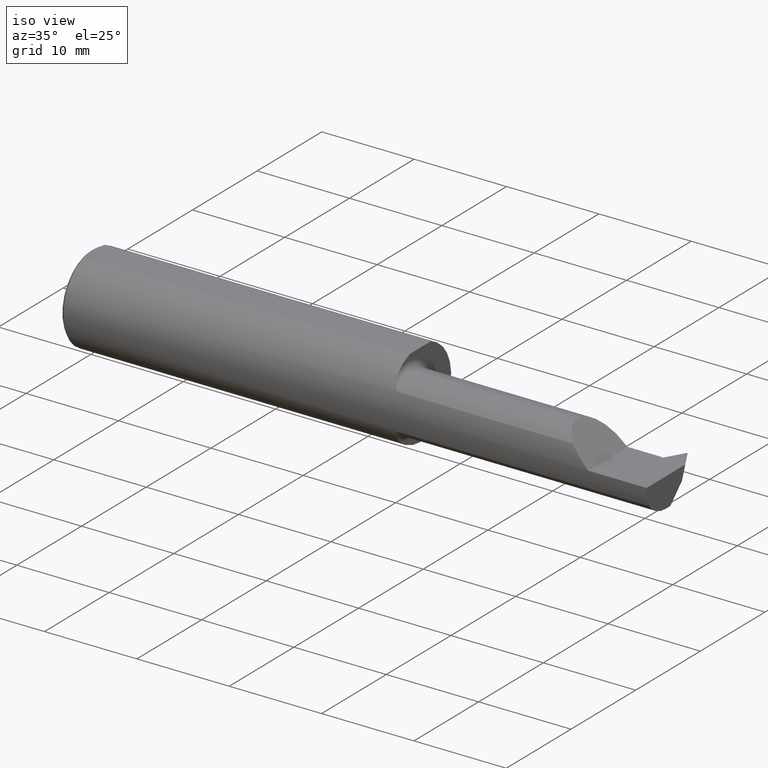
[diagram: clean part render]
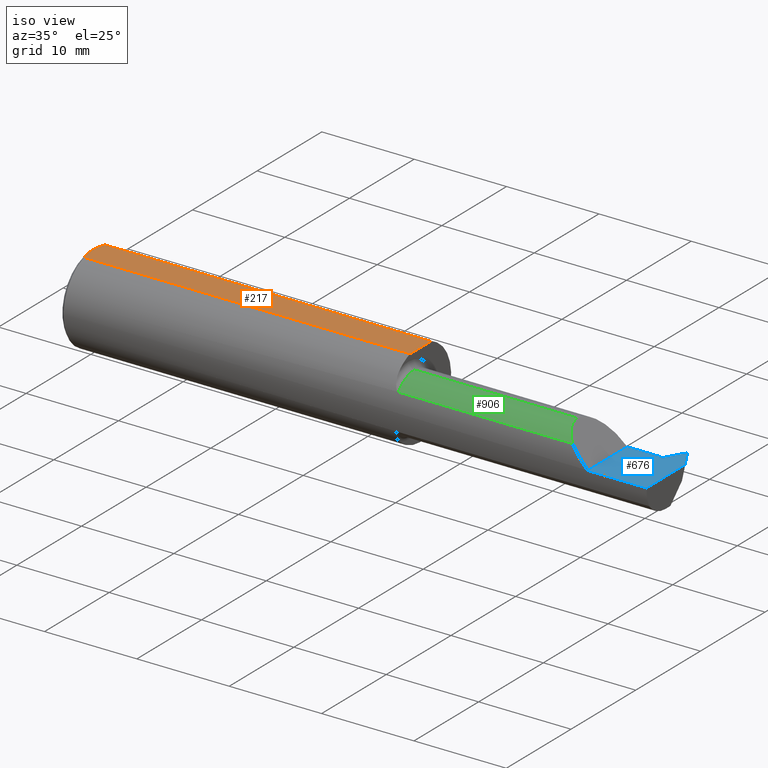
[diagram: same view with three faces highlighted in distinct colors, each labeled with its STEP entity id]
A machine part, iso view with three faces highlighted in distinct colors.
Their STEP definitions:

[orange] entity #217 — the highlighted planar face has unit normal (-0, 0, -1).
#15 = B_SPLINE_CURVE_WITH_KNOTS ( 'NONE', 3,
 ( #968, #867, #506, #125, #60, #277 ),
 .UNSPECIFIED., .F., .F.,
 ( 4, 2, 4 ),
 ( 0.004260876108247118113, 0.005070351723613903024, 0.005879827338980687934 ),
 .UNSPECIFIED. ) ;
#25 = ORIENTED_EDGE ( 'NONE', *, *, #627, .F. ) ;
#27 = PLANE ( 'NONE',  #288 ) ;
#51 = CARTESIAN_POINT ( 'NONE',  ( 1.405000000000000249, 0.06325108694718213631, 0.1763499999999999790 ) ) ;
#60 = CARTESIAN_POINT ( 'NONE',  ( 0.004000000000000399070, 0.01076648422130179264, 0.1763500000000000068 ) ) ;
#90 = EDGE_CURVE ( 'NONE', #502, #226, #842, .T. ) ;
#107 = CARTESIAN_POINT ( 'NONE',  ( 0.01500000000000079568, 0.06325108694718213631, 0.1763499999999999790 ) ) ;
#108 = VERTEX_POINT ( 'NONE', #914 ) ;
#125 = CARTESIAN_POINT ( 'NONE',  ( 0.005015674426658929021, 0.02160712711892616780, 0.1763499999999999790 ) ) ;
#156 = ORIENTED_EDGE ( 'NONE', *, *, #90, .F. ) ;
#170 = CARTESIAN_POINT ( 'NONE',  ( 0.008774081248144433368, -0.04260406931483737974, 0.1763499999999999790 ) ) ;
#217 = ADVANCED_FACE ( 'NONE', ( #707 ), #27, .F. ) ;
#226 = VERTEX_POINT ( 'NONE', #720 ) ;
#233 = VECTOR ( 'NONE', #961, 39.37007874015748143 ) ;
#244 = CARTESIAN_POINT ( 'NONE',  ( 0.01500000000000079048, -0.06325108694718213631, 0.1763499999999999790 ) ) ;
#252 = B_SPLINE_CURVE_WITH_KNOTS ( 'NONE', 3,
 ( #633, #850, #710, #170, #857, #244 ),
 .UNSPECIFIED., .F., .F.,
 ( 4, 2, 4 ),
 ( 0.005879827338980687934, 0.006688927827499994636, 0.007498028316019300470 ),
 .UNSPECIFIED. ) ;
#272 = LINE ( 'NONE', #648, #233 ) ;
#277 = CARTESIAN_POINT ( 'NONE',  ( 0.003999999999998503017, 1.478949923165211460E-16, 0.1763499999999999790 ) ) ;
#288 = AXIS2_PLACEMENT_3D ( 'NONE', #783, #339, #478 ) ;
#339 = DIRECTION ( 'NONE',  ( -0.000000000000000000, 0.000000000000000000, -1.000000000000000000 ) ) ;
#355 = LINE ( 'NONE', #573, #950 ) ;
#362 = ORIENTED_EDGE ( 'NONE', *, *, #549, .F. ) ;
#478 = DIRECTION ( 'NONE',  ( -1.000000000000000000, 0.000000000000000000, 0.000000000000000000 ) ) ;
#486 = VECTOR ( 'NONE', #910, 39.37007874015748143 ) ;
#502 = VERTEX_POINT ( 'NONE', #690 ) ;
#505 = EDGE_CURVE ( 'NONE', #108, #226, #252, .T. ) ;
#506 = CARTESIAN_POINT ( 'NONE',  ( 0.008798171893809259708, 0.04269596770163366223, 0.1763499999999999790 ) ) ;
#512 = ORIENTED_EDGE ( 'NONE', *, *, #905, .T. ) ;
#538 = ORIENTED_EDGE ( 'NONE', *, *, #505, .T. ) ;
#549 = EDGE_CURVE ( 'NONE', #605, #502, #355, .T. ) ;
#573 = CARTESIAN_POINT ( 'NONE',  ( 1.405000000000000249, 0.1749999999999999889, 0.1763499999999999790 ) ) ;
#605 = VERTEX_POINT ( 'NONE', #51 ) ;
#622 = CARTESIAN_POINT ( 'NONE',  ( 2.500000000000000000, -0.06325108694718213631, 0.1763499999999999790 ) ) ;
#627 = EDGE_CURVE ( 'NONE', #770, #605, #272, .T. ) ;
#633 = CARTESIAN_POINT ( 'NONE',  ( 0.003999999999998503017, 1.478949923165211460E-16, 0.1763499999999999790 ) ) ;
#648 = CARTESIAN_POINT ( 'NONE',  ( 2.500000000000000000, 0.06325108694718213631, 0.1763499999999999790 ) ) ;
#690 = CARTESIAN_POINT ( 'NONE',  ( 1.405000000000000249, -0.06325108694718215019, 0.1763499999999999790 ) ) ;
#707 = FACE_OUTER_BOUND ( 'NONE', #933, .T. ) ;
#710 = CARTESIAN_POINT ( 'NONE',  ( 0.004991821518933527678, -0.02143118227845419027, 0.1763500000000000068 ) ) ;
#720 = CARTESIAN_POINT ( 'NONE',  ( 0.01500000000000079048, -0.06325108694718213631, 0.1763499999999999790 ) ) ;
#770 = VERTEX_POINT ( 'NONE', #107 ) ;
#783 = CARTESIAN_POINT ( 'NONE',  ( 0.000000000000000000, 0.1749999999999999889, 0.1763499999999999790 ) ) ;
#842 = LINE ( 'NONE', #622, #486 ) ;
#850 = CARTESIAN_POINT ( 'NONE',  ( 0.004000000000000362640, -0.01076149482173471492, 0.1763499999999999790 ) ) ;
#857 = CARTESIAN_POINT ( 'NONE',  ( 0.01157529649258904302, -0.05310709997271137461, 0.1763500000000000068 ) ) ;
#867 = CARTESIAN_POINT ( 'NONE',  ( 0.01155577088586097305, 0.05304926503900153634, 0.1763499999999999512 ) ) ;
#905 = EDGE_CURVE ( 'NONE', #770, #108, #15, .T. ) ;
#910 = DIRECTION ( 'NONE',  ( -1.000000000000000000, -0.000000000000000000, -0.000000000000000000 ) ) ;
#914 = CARTESIAN_POINT ( 'NONE',  ( 0.003999999999998503017, 1.478949923165211460E-16, 0.1763499999999999790 ) ) ;
#933 = EDGE_LOOP ( 'NONE', ( #362, #25, #512, #538, #156 ) ) ;
#950 = VECTOR ( 'NONE', #952, 39.37007874015748143 ) ;
#952 = DIRECTION ( 'NONE',  ( 0.000000000000000000, -1.000000000000000000, 0.000000000000000000 ) ) ;
#961 = DIRECTION ( 'NONE',  ( 1.000000000000000000, 0.000000000000000000, 0.000000000000000000 ) ) ;
#968 = CARTESIAN_POINT ( 'NONE',  ( 0.01500000000000079568, 0.06325108694718213631, 0.1763499999999999790 ) ) ;

[blue] entity #676 — the highlighted planar face has unit normal (-0, 0, -1).
#28 = VECTOR ( 'NONE', #918, 39.37007874015748143 ) ;
#30 = ORIENTED_EDGE ( 'NONE', *, *, #719, .F. ) ;
#43 = VERTEX_POINT ( 'NONE', #167 ) ;
#50 = EDGE_CURVE ( 'NONE', #567, #115, #305, .T. ) ;
#62 = ORIENTED_EDGE ( 'NONE', *, *, #962, .T. ) ;
#115 = VERTEX_POINT ( 'NONE', #472 ) ;
#121 = ORIENTED_EDGE ( 'NONE', *, *, #970, .F. ) ;
#131 = LINE ( 'NONE', #203, #900 ) ;
#132 = VECTOR ( 'NONE', #677, 39.37007874015748143 ) ;
#134 = CARTESIAN_POINT ( 'NONE',  ( 2.250000000000000000, 0.2999999999999999889, -6.429183357567480113E-17 ) ) ;
#137 = CARTESIAN_POINT ( 'NONE',  ( 2.500000000000000000, -0.1873499999999998222, -6.429183357567480113E-17 ) ) ;
#140 = DIRECTION ( 'NONE',  ( 1.000000000000000000, -0.000000000000000000, -0.000000000000000000 ) ) ;
#167 = CARTESIAN_POINT ( 'NONE',  ( 2.500000000000000000, 0.04837758664047866336, 0.000000000000000000 ) ) ;
#181 = VECTOR ( 'NONE', #413, 39.37007874015748143 ) ;
#203 = CARTESIAN_POINT ( 'NONE',  ( 2.451000000000000068, 0.1332480762113532613, 0.000000000000000000 ) ) ;
#214 = VERTEX_POINT ( 'NONE', #640 ) ;
#218 = CARTESIAN_POINT ( 'NONE',  ( 2.500000000000000000, 0.2999999999999999889, -6.429183357567480113E-17 ) ) ;
#229 = CARTESIAN_POINT ( 'NONE',  ( 2.395000000000000018, 0.05064999999999998670, 0.000000000000000000 ) ) ;
#238 = CARTESIAN_POINT ( 'NONE',  ( 2.449500000000000899, 0.1306500000000009321, -6.429183357567480113E-17 ) ) ;
#246 = EDGE_CURVE ( 'NONE', #214, #438, #421, .T. ) ;
#256 = DIRECTION ( 'NONE',  ( 0.5000000000000012212, -0.8660254037844377084, 0.000000000000000000 ) ) ;
#257 = ORIENTED_EDGE ( 'NONE', *, *, #615, .F. ) ;
#290 = CARTESIAN_POINT ( 'NONE',  ( 2.403311978464830023, 0.05064999999999998670, 0.000000000000000000 ) ) ;
#293 = CARTESIAN_POINT ( 'NONE',  ( 2.403311978464830023, 0.05064999999999998670, 0.000000000000000000 ) ) ;
#304 = LINE ( 'NONE', #218, #28 ) ;
#305 = LINE ( 'NONE', #229, #132 ) ;
#314 = VECTOR ( 'NONE', #660, 39.37007874015748143 ) ;
#336 = CARTESIAN_POINT ( 'NONE',  ( 1.405000000000000249, 0.05265000000000001623, -6.429183357567480113E-17 ) ) ;
#363 = FACE_OUTER_BOUND ( 'NONE', #943, .T. ) ;
#364 = DIRECTION ( 'NONE',  ( 1.000000000000000000, 0.000000000000000000, 0.000000000000000000 ) ) ;
#365 = CARTESIAN_POINT ( 'NONE',  ( 2.250000000000000000, -0.1873499999999999610, -6.429183357567478880E-17 ) ) ;
#376 = PLANE ( 'NONE',  #461 ) ;
#386 = LINE ( 'NONE', #780, #431 ) ;
#413 = DIRECTION ( 'NONE',  ( -1.000000000000000000, 5.814278724007906947E-15, 0.000000000000000000 ) ) ;
#414 = LINE ( 'NONE', #336, #805 ) ;
#420 = CARTESIAN_POINT ( 'NONE',  ( 2.395000000000000018, 0.05265000000000001623, 0.000000000000000000 ) ) ;
#421 = LINE ( 'NONE', #949, #181 ) ;
#422 = VERTEX_POINT ( 'NONE', #137 ) ;
#423 = LINE ( 'NONE', #817, #314 ) ;
#431 = VECTOR ( 'NONE', #465, 39.37007874015748143 ) ;
#432 = VERTEX_POINT ( 'NONE', #365 ) ;
#437 = CARTESIAN_POINT ( 'NONE',  ( 2.403311978464830023, 0.05064999999999998670, 0.000000000000000000 ) ) ;
#438 = VERTEX_POINT ( 'NONE', #238 ) ;
#452 = DIRECTION ( 'NONE',  ( -1.000000000000000000, 0.000000000000000000, 0.000000000000000000 ) ) ;
#456 = VECTOR ( 'NONE', #909, 39.37007874015748854 ) ;
#461 = AXIS2_PLACEMENT_3D ( 'NONE', #134, #613, #452 ) ;
#465 = DIRECTION ( 'NONE',  ( -0.000000000000000000, 1.000000000000000000, -0.000000000000000000 ) ) ;
#472 = CARTESIAN_POINT ( 'NONE',  ( 2.395000000000000018, 0.05064999999999998670, 0.000000000000000000 ) ) ;
#474 = ORIENTED_EDGE ( 'NONE', *, *, #870, .F. ) ;
#523 = VERTEX_POINT ( 'NONE', #893 ) ;
#526 = LINE ( 'NONE', #293, #456 ) ;
#567 = VERTEX_POINT ( 'NONE', #420 ) ;
#587 = ORIENTED_EDGE ( 'NONE', *, *, #901, .F. ) ;
#613 = DIRECTION ( 'NONE',  ( -0.000000000000000000, 0.000000000000000000, -1.000000000000000000 ) ) ;
#615 = EDGE_CURVE ( 'NONE', #422, #432, #423, .T. ) ;
#640 = CARTESIAN_POINT ( 'NONE',  ( 2.452499999999999680, 0.1306500000000009043, 0.000000000000000000 ) ) ;
#660 = DIRECTION ( 'NONE',  ( -1.000000000000000000, -0.000000000000000000, -0.000000000000000000 ) ) ;
#664 = ORIENTED_EDGE ( 'NONE', *, *, #687, .F. ) ;
#668 = ORIENTED_EDGE ( 'NONE', *, *, #50, .F. ) ;
#676 = ADVANCED_FACE ( 'NONE', ( #363 ), #376, .F. ) ;
#677 = DIRECTION ( 'NONE',  ( -0.000000000000000000, -1.000000000000000000, -0.000000000000000000 ) ) ;
#687 = EDGE_CURVE ( 'NONE', #115, #848, #903, .T. ) ;
#719 = EDGE_CURVE ( 'NONE', #432, #523, #386, .T. ) ;
#721 = ORIENTED_EDGE ( 'NONE', *, *, #246, .T. ) ;
#749 = VECTOR ( 'NONE', #140, 39.37007874015748143 ) ;
#780 = CARTESIAN_POINT ( 'NONE',  ( 2.250000000000000000, 0.2999999999999999889, -6.429183357567480113E-17 ) ) ;
#805 = VECTOR ( 'NONE', #364, 39.37007874015748143 ) ;
#817 = CARTESIAN_POINT ( 'NONE',  ( 2.500000000000000000, -0.1873499999999999888, -6.429183357567480113E-17 ) ) ;
#848 = VERTEX_POINT ( 'NONE', #437 ) ;
#870 = EDGE_CURVE ( 'NONE', #523, #567, #414, .T. ) ;
#893 = CARTESIAN_POINT ( 'NONE',  ( 2.250000000000000000, 0.05265000000000000235, -6.429183357567478880E-17 ) ) ;
#900 = VECTOR ( 'NONE', #256, 39.37007874015748854 ) ;
#901 = EDGE_CURVE ( 'NONE', #214, #43, #131, .T. ) ;
#903 = LINE ( 'NONE', #290, #749 ) ;
#909 = DIRECTION ( 'NONE',  ( 0.5000000000000001110, 0.8660254037844384856, 0.000000000000000000 ) ) ;
#918 = DIRECTION ( 'NONE',  ( -0.000000000000000000, 1.000000000000000000, -0.000000000000000000 ) ) ;
#943 = EDGE_LOOP ( 'NONE', ( #62, #587, #721, #121, #664, #668, #474, #30, #257 ) ) ;
#949 = CARTESIAN_POINT ( 'NONE',  ( 2.249999999999999112, 0.1306500000000020978, -6.429183357567480113E-17 ) ) ;
#962 = EDGE_CURVE ( 'NONE', #422, #43, #304, .T. ) ;
#970 = EDGE_CURVE ( 'NONE', #848, #438, #526, .T. ) ;

[green] entity #906 — the highlighted cylindrical surface (edge-blend (fillet) strip) has radius 3.175 mm, axis along (-1, -0, -0).
#4 = VECTOR ( 'NONE', #872, 39.37007874015748143 ) ;
#68 = VERTEX_POINT ( 'NONE', #310 ) ;
#70 = AXIS2_PLACEMENT_3D ( 'NONE', #309, #142, #223 ) ;
#96 = CARTESIAN_POINT ( 'NONE',  ( 1.429999999999999938, -0.07234999999999998377, 0.000000000000000000 ) ) ;
#99 = CARTESIAN_POINT ( 'NONE',  ( 2.173280599499920918, -0.1707639599170693578, 0.07706940050007844711 ) ) ;
#103 = CARTESIAN_POINT ( 'NONE',  ( 1.405000000000000249, -0.07234999999999998377, 0.1250000000000000000 ) ) ;
#124 =( BOUNDED_CURVE ( )  B_SPLINE_CURVE ( 3, ( #869, #411, #187, #99 ),
 .UNSPECIFIED., .F., .F. ) 
 B_SPLINE_CURVE_WITH_KNOTS ( ( 4, 4 ),
 ( 0.000000000000000000, 0.9064365498903661500 ),
 .UNSPECIFIED. ) 
 CURVE ( )  GEOMETRIC_REPRESENTATION_ITEM ( )  RATIONAL_B_SPLINE_CURVE ( ( 1.000000000000000000, 0.9326950686634400967, 0.9326950686634400967, 1.000000000000000000 ) ) 
 REPRESENTATION_ITEM ( '' )  );
#142 = DIRECTION ( 'NONE',  ( -1.000000000000000000, -0.000000000000000000, -0.000000000000000000 ) ) ;
#143 = ORIENTED_EDGE ( 'NONE', *, *, #796, .T. ) ;
#187 = CARTESIAN_POINT ( 'NONE',  ( 2.142479785539520787, -0.1466433954276125384, 0.1078702144604786056 ) ) ;
#192 = CARTESIAN_POINT ( 'NONE',  ( 1.902500000000000302, -0.1707639599170698019, 0.07706940050007766996 ) ) ;
#223 = DIRECTION ( 'NONE',  ( 0.000000000000000000, 0.000000000000000000, 1.000000000000000000 ) ) ;
#237 = ORIENTED_EDGE ( 'NONE', *, *, #340, .T. ) ;
#282 = DIRECTION ( 'NONE',  ( -1.000000000000000000, -0.000000000000000000, -0.000000000000000000 ) ) ;
#309 = CARTESIAN_POINT ( 'NONE',  ( 1.405000000000000249, -0.07234999999999998377, 0.000000000000000000 ) ) ;
#310 = CARTESIAN_POINT ( 'NONE',  ( 2.173280599499920918, -0.1707639599170693578, 0.07706940050007844711 ) ) ;
#326 = EDGE_CURVE ( 'NONE', #876, #68, #878, .T. ) ;
#340 = EDGE_CURVE ( 'NONE', #434, #876, #464, .T. ) ;
#410 = ORIENTED_EDGE ( 'NONE', *, *, #326, .T. ) ;
#411 = CARTESIAN_POINT ( 'NONE',  ( 2.125349999999999628, -0.1114715001235029451, 0.1250000000000000278 ) ) ;
#434 = VERTEX_POINT ( 'NONE', #638 ) ;
#445 = EDGE_CURVE ( 'NONE', #671, #68, #124, .T. ) ;
#464 = CIRCLE ( 'NONE', #881, 0.1250000000000000000 ) ;
#483 = DIRECTION ( 'NONE',  ( 1.000000000000000000, 0.000000000000000000, 0.000000000000000000 ) ) ;
#562 = DIRECTION ( 'NONE',  ( 0.000000000000000000, 0.000000000000000000, -1.000000000000000000 ) ) ;
#564 = CARTESIAN_POINT ( 'NONE',  ( 2.125349999999999184, -0.07234999999999998377, 0.1250000000000000000 ) ) ;
#591 = FACE_OUTER_BOUND ( 'NONE', #806, .T. ) ;
#638 = CARTESIAN_POINT ( 'NONE',  ( 1.429999999999999938, -0.07234999999999998377, 0.1250000000000000000 ) ) ;
#671 = VERTEX_POINT ( 'NONE', #564 ) ;
#791 = ORIENTED_EDGE ( 'NONE', *, *, #445, .F. ) ;
#796 = EDGE_CURVE ( 'NONE', #671, #434, #810, .T. ) ;
#806 = EDGE_LOOP ( 'NONE', ( #791, #143, #237, #410 ) ) ;
#810 = LINE ( 'NONE', #103, #884 ) ;
#841 = CYLINDRICAL_SURFACE ( 'NONE', #70, 0.1250000000000000000 ) ;
#869 = CARTESIAN_POINT ( 'NONE',  ( 2.125349999999999184, -0.07234999999999998377, 0.1250000000000000000 ) ) ;
#872 = DIRECTION ( 'NONE',  ( 1.000000000000000000, 0.000000000000000000, 0.000000000000000000 ) ) ;
#876 = VERTEX_POINT ( 'NONE', #959 ) ;
#878 = LINE ( 'NONE', #192, #4 ) ;
#881 = AXIS2_PLACEMENT_3D ( 'NONE', #96, #483, #562 ) ;
#884 = VECTOR ( 'NONE', #282, 39.37007874015748143 ) ;
#906 = ADVANCED_FACE ( 'NONE', ( #591 ), #841, .T. ) ;
#959 = CARTESIAN_POINT ( 'NONE',  ( 1.429999999999999938, -0.1707639599170698019, 0.07706940050007766996 ) ) ;